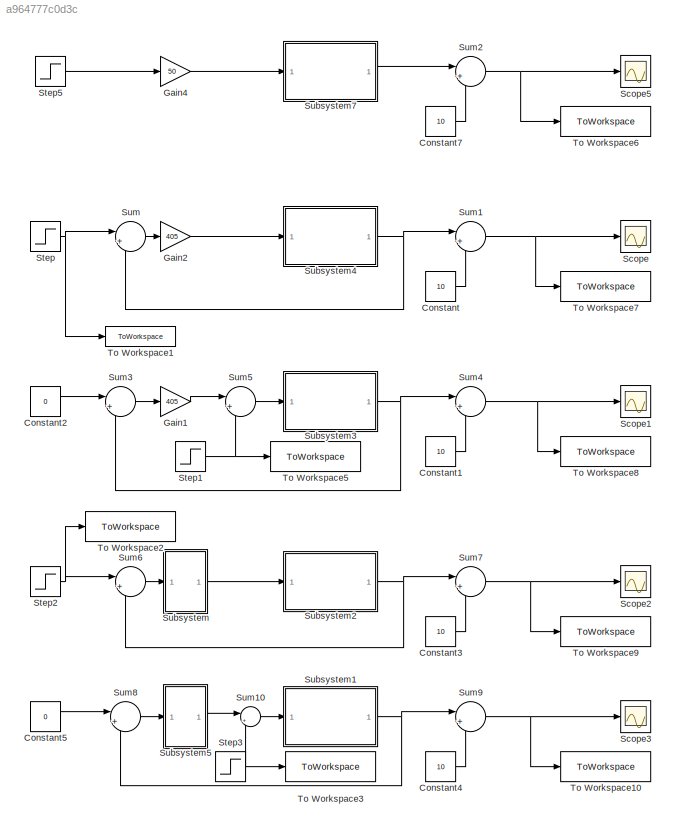
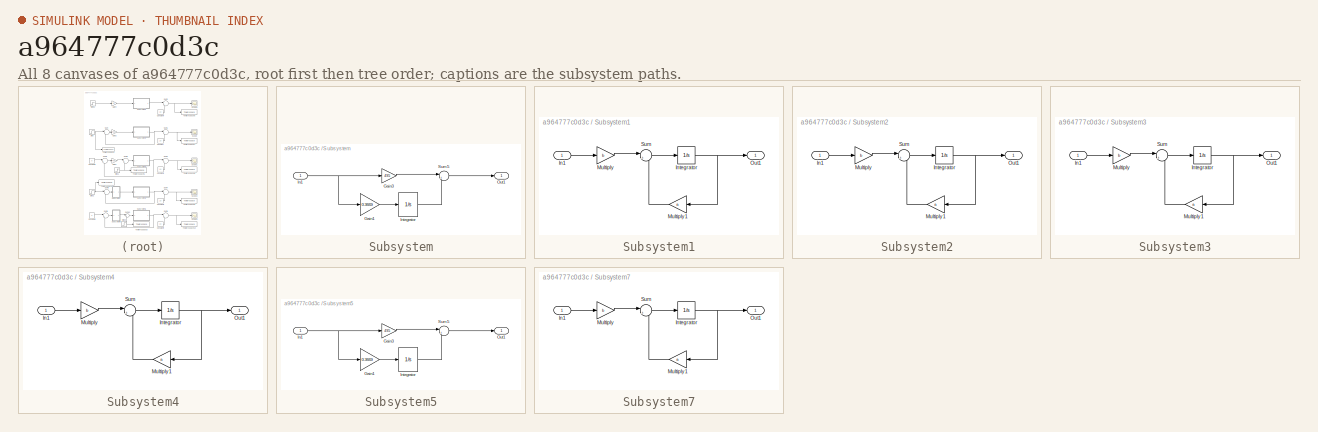
[diagram: thumbnail index - all 8 canvases of the model, root first then tree order]
MODEL slx_a964777c0d3c
KIND model
CONFIG AbsTol = auto
CONFIG EnableMultiTasking = off
CONFIG FixedStep = auto
CONFIG MaxStep = auto
CONFIG MinStep = auto
CONFIG RelTol = 1e-3
CONFIG SampleTimeConstraint = Unconstrained
CONFIG Solver = VariableStepAuto
CONFIG SolverName = VariableStepAuto
CONFIG StartTime = 0.0
CONFIG StopTime = 25000
BLOCK [Constant] Constant
  Value = 10
BLOCK [Constant] Constant1
  Value = 10
BLOCK [Constant] Constant2
  Value = 0
BLOCK [Constant] Constant3
  Value = 10
BLOCK [Constant] Constant4
  Value = 10
BLOCK [Constant] Constant5
  Value = 0
BLOCK [Constant] Constant7
  Value = 10
BLOCK [Gain] Gain1
  Gain = 405
BLOCK [Gain] Gain2
  Gain = 405
BLOCK [Gain] Gain4
  Gain = 50
BLOCK [Scope] Scope
  Floating = off
  NumInputPorts = 1
  Ports = [1]
  ScopeSpecificationString = Simulink.scopes.TimeScopeBlockCfg('CurrentConfiguration', extmgr.ConfigurationSet(extmgr.Configuration('Core','General UI',true),extmgr.Configuration('Core','Source UI',true),extmgr.Configuration('Sources','WiredSimulink',true,'DataLoggingVariableName','ScopeData1'),extmgr.Configuration('Visuals','Time Domain',true,'SerializedDisplays',{struct('MinYLimReal','3.25','MaxYLimReal','20.75','YLabelReal...<+1341ch>
BLOCK [Scope] Scope1
  Floating = off
  NumInputPorts = 1
  Ports = [1]
  ScopeSpecificationString = Simulink.scopes.TimeScopeBlockCfg('CurrentConfiguration', extmgr.ConfigurationSet(extmgr.Configuration('Core','General UI',true),extmgr.Configuration('Core','Source UI',true),extmgr.Configuration('Sources','WiredSimulink',true,'DataLoggingVariableName','ScopeData2'),extmgr.Configuration('Visuals','Time Domain',true,'SerializedDisplays',{struct('MinYLimReal','4.30556','MaxYLimReal','11.25','YLabelR...<+1379ch>
BLOCK [Scope] Scope2
  Floating = off
  NumInputPorts = 1
  Ports = [1]
  ScopeSpecificationString = Simulink.scopes.TimeScopeBlockCfg('CurrentConfiguration', extmgr.ConfigurationSet(extmgr.Configuration('Core','General UI',true),extmgr.Configuration('Core','Source UI',true),extmgr.Configuration('Sources','WiredSimulink',true,'DataLoggingVariableName','ScopeData3'),extmgr.Configuration('Visuals','Time Domain',true,'SerializedDisplays',{struct('MinYLimReal','3.12498','MaxYLimReal','21.87514','YLab...<+1365ch>
BLOCK [Scope] Scope3
  Floating = off
  NumInputPorts = 1
  Ports = [1]
  ScopeSpecificationString = Simulink.scopes.TimeScopeBlockCfg('CurrentConfiguration', extmgr.ConfigurationSet(extmgr.Configuration('Core','General UI',true),extmgr.Configuration('Core','Source UI',true),extmgr.Configuration('Sources','WiredSimulink',true,'DataLoggingVariableName','ScopeData4'),extmgr.Configuration('Visuals','Time Domain',true,'SerializedDisplays',{struct('MinYLimReal','4.3253','MaxYLimReal','11.0723','YLabel...<+1357ch>
BLOCK [Scope] Scope5
  Floating = off
  NumInputPorts = 1
  Ports = [1]
  ScopeSpecificationString = Simulink.scopes.TimeScopeBlockCfg('CurrentConfiguration', extmgr.ConfigurationSet(extmgr.Configuration('Core','General UI',true),extmgr.Configuration('Core','Source UI',true),extmgr.Configuration('Sources','WiredSimulink',true,'DataLoggingVariableName','ScopeData5'),extmgr.Configuration('Visuals','Time Domain',true,'SerializedDisplays',{struct('MinYLimReal','2.98613','MaxYLimReal','23.12481','YLab...<+1395ch>
BLOCK [Step] Step
  After = 10
  SampleTime = 0
  Time = 10000
BLOCK [Step] Step1
  After = 250
  SampleTime = 0
  Time = 10000
BLOCK [Step] Step2
  After = 10
  SampleTime = 0
  Time = 10000
BLOCK [Step] Step3
  After = 250
  SampleTime = 0
  Time = 10000
BLOCK [Step] Step5
  After = 10
  SampleTime = 0
  Time = 10000
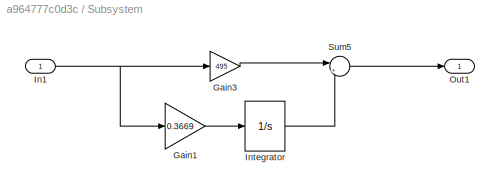
BLOCK [SubSystem] Subsystem
  Ports = [1, 1]
  RequestExecContextInheritance = off
BLOCK [Gain] Subsystem/Gain1
  Gain = 0.3669
BLOCK [Gain] Subsystem/Gain3
  Gain = 495
BLOCK [Inport] Subsystem/In1
BLOCK [Integrator] Subsystem/Integrator
  Ports = [1, 1]
BLOCK [Outport] Subsystem/Out1
BLOCK [Sum] Subsystem/Sum5
  Inputs = |++
  Ports = [2, 1]
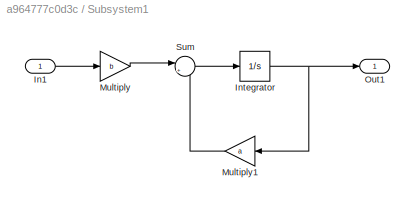
BLOCK [SubSystem] Subsystem1
  Ports = [1, 1]
  RequestExecContextInheritance = off
BLOCK [Inport] Subsystem1/In1
BLOCK [Integrator] Subsystem1/Integrator
  InitialCondition = -5
  Ports = [1, 1]
BLOCK [Gain] Subsystem1/Multiply
  Gain = b
BLOCK [Gain] Subsystem1/Multiply1
  Gain = a
BLOCK [Outport] Subsystem1/Out1
BLOCK [Sum] Subsystem1/Sum
  Inputs = |++
  Ports = [2, 1]
BLOCK [SubSystem] Subsystem2
  Ports = [1, 1]
  RequestExecContextInheritance = off
BLOCK [Inport] Subsystem2/In1
BLOCK [Integrator] Subsystem2/Integrator
  InitialCondition = -5
  Ports = [1, 1]
BLOCK [Gain] Subsystem2/Multiply
  Gain = b
BLOCK [Gain] Subsystem2/Multiply1
  Gain = a
BLOCK [Outport] Subsystem2/Out1
BLOCK [Sum] Subsystem2/Sum
  Inputs = |++
  Ports = [2, 1]
BLOCK [SubSystem] Subsystem3
  Ports = [1, 1]
  RequestExecContextInheritance = off
BLOCK [Inport] Subsystem3/In1
BLOCK [Integrator] Subsystem3/Integrator
  InitialCondition = -5
  Ports = [1, 1]
BLOCK [Gain] Subsystem3/Multiply
  Gain = b
BLOCK [Gain] Subsystem3/Multiply1
  Gain = a
BLOCK [Outport] Subsystem3/Out1
BLOCK [Sum] Subsystem3/Sum
  Inputs = |++
  Ports = [2, 1]
BLOCK [SubSystem] Subsystem4
  Ports = [1, 1]
  RequestExecContextInheritance = off
BLOCK [Inport] Subsystem4/In1
BLOCK [Integrator] Subsystem4/Integrator
  InitialCondition = -5
  Ports = [1, 1]
BLOCK [Gain] Subsystem4/Multiply
  Gain = b
BLOCK [Gain] Subsystem4/Multiply1
  Gain = a
BLOCK [Outport] Subsystem4/Out1
BLOCK [Sum] Subsystem4/Sum
  Inputs = |++
  Ports = [2, 1]
BLOCK [SubSystem] Subsystem5
  Ports = [1, 1]
  RequestExecContextInheritance = off
BLOCK [Gain] Subsystem5/Gain1
  Gain = 0.3669
BLOCK [Gain] Subsystem5/Gain3
  Gain = 495
BLOCK [Inport] Subsystem5/In1
BLOCK [Integrator] Subsystem5/Integrator
  Ports = [1, 1]
BLOCK [Outport] Subsystem5/Out1
BLOCK [Sum] Subsystem5/Sum5
  Inputs = |++
  Ports = [2, 1]
BLOCK [SubSystem] Subsystem7
  Ports = [1, 1]
  RequestExecContextInheritance = off
BLOCK [Inport] Subsystem7/In1
BLOCK [Integrator] Subsystem7/Integrator
  InitialCondition = -5
  Ports = [1, 1]
BLOCK [Gain] Subsystem7/Multiply
  Gain = b
BLOCK [Gain] Subsystem7/Multiply1
  Gain = a
BLOCK [Outport] Subsystem7/Out1
BLOCK [Sum] Subsystem7/Sum
  Inputs = |++
  Ports = [2, 1]
BLOCK [Sum] Sum
  Inputs = |+-
  Ports = [2, 1]
BLOCK [Sum] Sum1
  Inputs = |++
  Ports = [2, 1]
BLOCK [Sum] Sum10
  Inputs = |++
  Ports = [2, 1]
BLOCK [Sum] Sum2
  Inputs = |++
  Ports = [2, 1]
BLOCK [Sum] Sum3
  Inputs = |+-
  Ports = [2, 1]
BLOCK [Sum] Sum4
  Inputs = |++
  Ports = [2, 1]
BLOCK [Sum] Sum5
  Inputs = |++
  Ports = [2, 1]
BLOCK [Sum] Sum6
  Inputs = |+-
  Ports = [2, 1]
BLOCK [Sum] Sum7
  Inputs = |++
  Ports = [2, 1]
BLOCK [Sum] Sum8
  Inputs = |+-
  Ports = [2, 1]
BLOCK [Sum] Sum9
  Inputs = |++
  Ports = [2, 1]
BLOCK [ToWorkspace] To Workspace1
  FixptAsFi = on
  MaxDataPoints = inf
  Ports = [1]
  SampleTime = -1
  VariableName = ref
BLOCK [ToWorkspace] To Workspace10
  FixptAsFi = on
  MaxDataPoints = inf
  Ports = [1]
  SampleTime = -1
  VariableName = E
BLOCK [ToWorkspace] To Workspace2
  FixptAsFi = on
  MaxDataPoints = inf
  Ports = [1]
  SampleTime = -1
  VariableName = DR
BLOCK [ToWorkspace] To Workspace3
  FixptAsFi = on
  MaxDataPoints = inf
  Ports = [1]
  SampleTime = -1
  VariableName = ER
BLOCK [ToWorkspace] To Workspace5
  FixptAsFi = on
  MaxDataPoints = inf
  Ports = [1]
  SampleTime = 1
  SaveFormat = Timeseries
  VariableName = CR
BLOCK [ToWorkspace] To Workspace6
  FixptAsFi = on
  MaxDataPoints = inf
  Ports = [1]
  SampleTime = -1
  VariableName = A
BLOCK [ToWorkspace] To Workspace7
  FixptAsFi = on
  MaxDataPoints = inf
  Ports = [1]
  SampleTime = -1
  VariableName = B
BLOCK [ToWorkspace] To Workspace8
  FixptAsFi = on
  MaxDataPoints = inf
  Ports = [1]
  SampleTime = -1
  VariableName = C
BLOCK [ToWorkspace] To Workspace9
  FixptAsFi = on
  MaxDataPoints = inf
  Ports = [1]
  SampleTime = -1
  VariableName = D
LINE Constant1:1 -> Sum4:2
LINE Constant2:1 -> Sum3:1
LINE Constant3:1 -> Sum7:2
LINE Constant4:1 -> Sum9:2
LINE Constant5:1 -> Sum8:1
LINE Constant7:1 -> Sum2:2
LINE Constant:1 -> Sum1:2
LINE Gain1:1 -> Sum5:1
LINE Gain2:1 -> Subsystem4:1
LINE Gain4:1 -> Subsystem7:1
NET Step1:1 -> Sum5:2, To Workspace5:1
NET Step2:1 -> Sum6:1, To Workspace2:1
NET Step3:1 -> Sum10:2, To Workspace3:1
LINE Step5:1 -> Gain4:1
NET Step:1 -> Sum:1, To Workspace1:1
LINE Subsystem/Gain1:1 -> Subsystem/Integrator:1
LINE Subsystem/Gain3:1 -> Subsystem/Sum5:1
NET Subsystem/In1:1 -> Subsystem/Gain1:1, Subsystem/Gain3:1
LINE Subsystem/Integrator:1 -> Subsystem/Sum5:2
LINE Subsystem/Sum5:1 -> Subsystem/Out1:1
LINE Subsystem1/In1:1 -> Subsystem1/Multiply:1
NET Subsystem1/Integrator:1 -> Subsystem1/Multiply1:1, Subsystem1/Out1:1
LINE Subsystem1/Multiply1:1 -> Subsystem1/Sum:2
LINE Subsystem1/Multiply:1 -> Subsystem1/Sum:1
LINE Subsystem1/Sum:1 -> Subsystem1/Integrator:1
NET Subsystem1:1 -> Sum8:2, Sum9:1
LINE Subsystem2/In1:1 -> Subsystem2/Multiply:1
NET Subsystem2/Integrator:1 -> Subsystem2/Multiply1:1, Subsystem2/Out1:1
LINE Subsystem2/Multiply1:1 -> Subsystem2/Sum:2
LINE Subsystem2/Multiply:1 -> Subsystem2/Sum:1
LINE Subsystem2/Sum:1 -> Subsystem2/Integrator:1
NET Subsystem2:1 -> Sum6:2, Sum7:1
LINE Subsystem3/In1:1 -> Subsystem3/Multiply:1
NET Subsystem3/Integrator:1 -> Subsystem3/Multiply1:1, Subsystem3/Out1:1
LINE Subsystem3/Multiply1:1 -> Subsystem3/Sum:2
LINE Subsystem3/Multiply:1 -> Subsystem3/Sum:1
LINE Subsystem3/Sum:1 -> Subsystem3/Integrator:1
NET Subsystem3:1 -> Sum3:2, Sum4:1
LINE Subsystem4/In1:1 -> Subsystem4/Multiply:1
NET Subsystem4/Integrator:1 -> Subsystem4/Multiply1:1, Subsystem4/Out1:1
LINE Subsystem4/Multiply1:1 -> Subsystem4/Sum:2
LINE Subsystem4/Multiply:1 -> Subsystem4/Sum:1
LINE Subsystem4/Sum:1 -> Subsystem4/Integrator:1
NET Subsystem4:1 -> Sum1:1, Sum:2
LINE Subsystem5/Gain1:1 -> Subsystem5/Integrator:1
LINE Subsystem5/Gain3:1 -> Subsystem5/Sum5:1
NET Subsystem5/In1:1 -> Subsystem5/Gain1:1, Subsystem5/Gain3:1
LINE Subsystem5/Integrator:1 -> Subsystem5/Sum5:2
LINE Subsystem5/Sum5:1 -> Subsystem5/Out1:1
LINE Subsystem5:1 -> Sum10:1
LINE Subsystem7/In1:1 -> Subsystem7/Multiply:1
NET Subsystem7/Integrator:1 -> Subsystem7/Multiply1:1, Subsystem7/Out1:1
LINE Subsystem7/Multiply1:1 -> Subsystem7/Sum:2
LINE Subsystem7/Multiply:1 -> Subsystem7/Sum:1
LINE Subsystem7/Sum:1 -> Subsystem7/Integrator:1
LINE Subsystem7:1 -> Sum2:1
LINE Subsystem:1 -> Subsystem2:1
LINE Sum10:1 -> Subsystem1:1
NET Sum1:1 -> Scope:1, To Workspace7:1
NET Sum2:1 -> Scope5:1, To Workspace6:1
LINE Sum3:1 -> Gain1:1
NET Sum4:1 -> Scope1:1, To Workspace8:1
LINE Sum5:1 -> Subsystem3:1
LINE Sum6:1 -> Subsystem:1
NET Sum7:1 -> Scope2:1, To Workspace9:1
LINE Sum8:1 -> Subsystem5:1
NET Sum9:1 -> Scope3:1, To Workspace10:1
LINE Sum:1 -> Gain2:1
note: NET lines group one-source signal fan-out (src -> all destinations, sorted); 1:1 wires keep LINE
